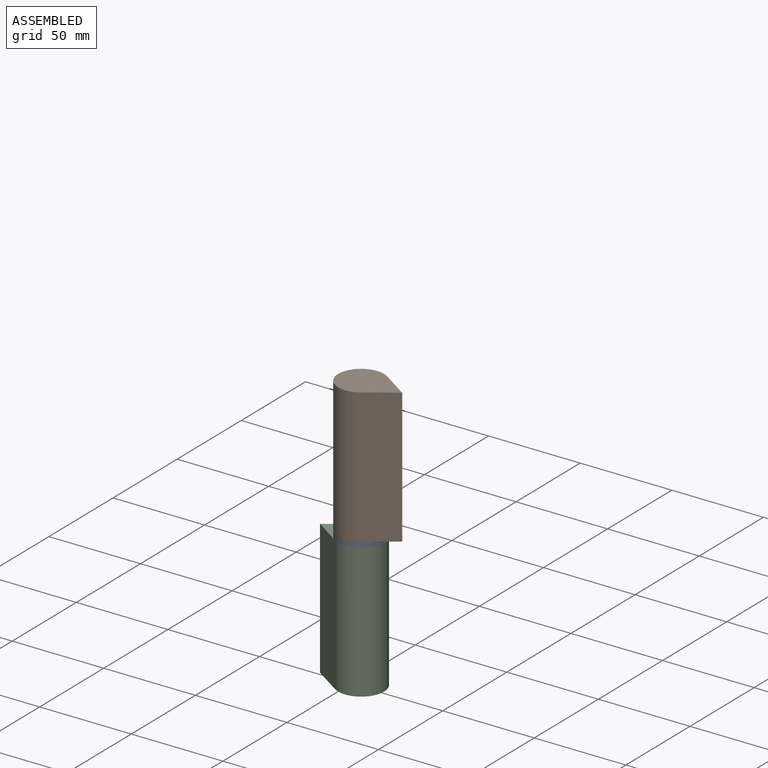
[diagram: assembled view]
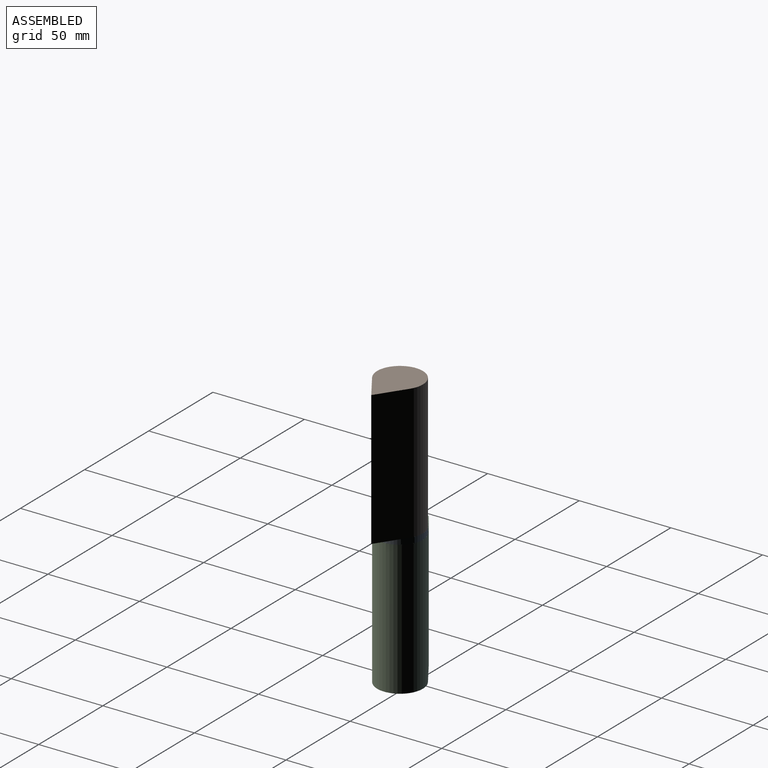
[diagram: assembled view, second angle]
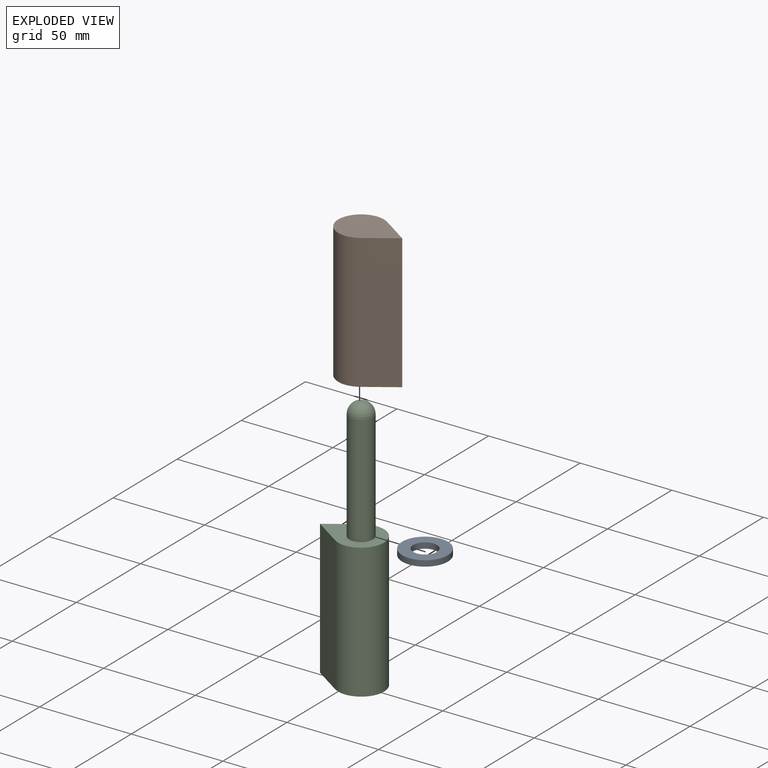
[diagram: exploded view]
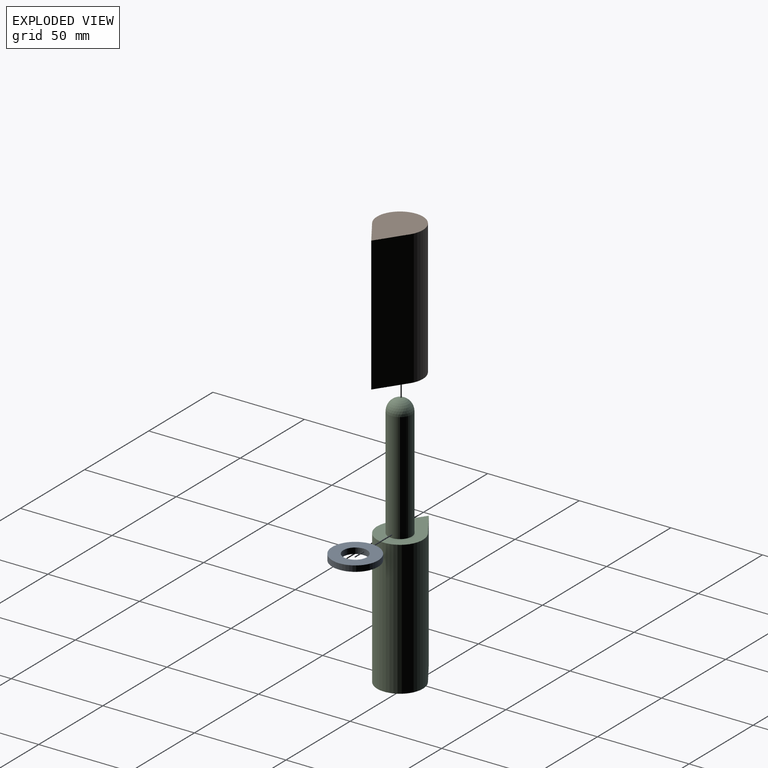
[diagram: exploded view, second angle]
ASSEMBLY  parts=3 mates=4
PART A: 4 faces, bbox 25x25x3.2 mm
  f0: cylinder r=6.48mm len=12.95mm, axis (0,0,-1), area 129.2mm2, adj f2,f3
  f1: cylinder r=12.5mm len=24.99mm, axis (0,0,-1), area 249.3mm2, adj f2,f3
  f2: plane 24.99x24.99mm, normal (0,0,1), area 358.8mm2, adj f0,f1
  f3: plane 24.99x24.99mm, normal (0,0,-1), area 358.8mm2, adj f0,f1
PART B: 7 faces, bbox 34.9x25x73.5 mm
  f0: plane 73.47x15.47mm, normal (-0.56,-0.83,0), area 1368.3mm2, adj f1,f2,f3,f4
  f1: cylinder r=12.5mm len=73.47mm, axis (0,0,1), area 3969.6mm2, adj f0,f2,f3,f4
  f2: plane 73.47x15.47mm, normal (-0.56,0.83,0), area 1368.3mm2, adj f0,f1,f3,f4
  f3: plane 34.93x24.99mm, normal (0,0,-1), area 570.3mm2, adj f0,f1,f2
  f4: plane 34.93x24.99mm, normal (0,0,1), area 438.6mm2, adj f0,f1,f2,f5
  f5: cylinder r=6.48mm len=57.02mm, axis (0,0,1), area 2320.6mm2, adj f4,f6
  f6: sphere r=6.48mm, area 263.6mm2, adj f5
PART C: 7 faces, bbox 34.9x25x140.2 mm
  f0: plane 73.48x15.47mm, normal (-0.56,-0.83,0), area 1368.5mm2, adj f1,f2,f3,f4
  f1: cylinder r=12.5mm len=73.48mm, axis (0,0,-1), area 3970.3mm2, adj f0,f2,f3,f4
  f2: plane 73.48x15.47mm, normal (-0.56,0.83,0), area 1368.5mm2, adj f0,f1,f3,f4
  f3: plane 34.93x24.99mm, normal (0,0,1), area 438.6mm2, adj f0,f1,f2,f5
  f4: plane 34.93x24.99mm, normal (0,0,-1), area 570.3mm2, adj f0,f1,f2
  f5: cylinder r=6.48mm len=60.2mm, axis (0,0,-1), area 2449.8mm2, adj f3,f6
  f6: sphere r=6.48mm, area 263.6mm2, adj f5
PLACE A rot(axis=(0,0,1),0deg) t=(57.33,-2.63,-79.77)mm
PLACE B rot(axis=(0,-1,0),180deg) t=(57.33,-2.63,-76.59)mm
PLACE C rot(axis=(0,0,1),0deg) t=(57.33,-2.63,-153.25)mm
MATE cylindrical C.f5 <-> A.f0  axis (0,0,-1) through (57.33,-2.63,-49.67)mm
MATE cylindrical B.f5 <-> C.f5  axis (0,0,-1) through (57.33,-2.63,-48.08)mm
MATE fastened A.f1 <-> B.f1  axis (0,0,1) through (57.33,-2.63,-76.59)mm
MATE fastened A.f1 <-> C.f1  axis (0,0,-1) through (57.33,-2.63,-79.77)mm
